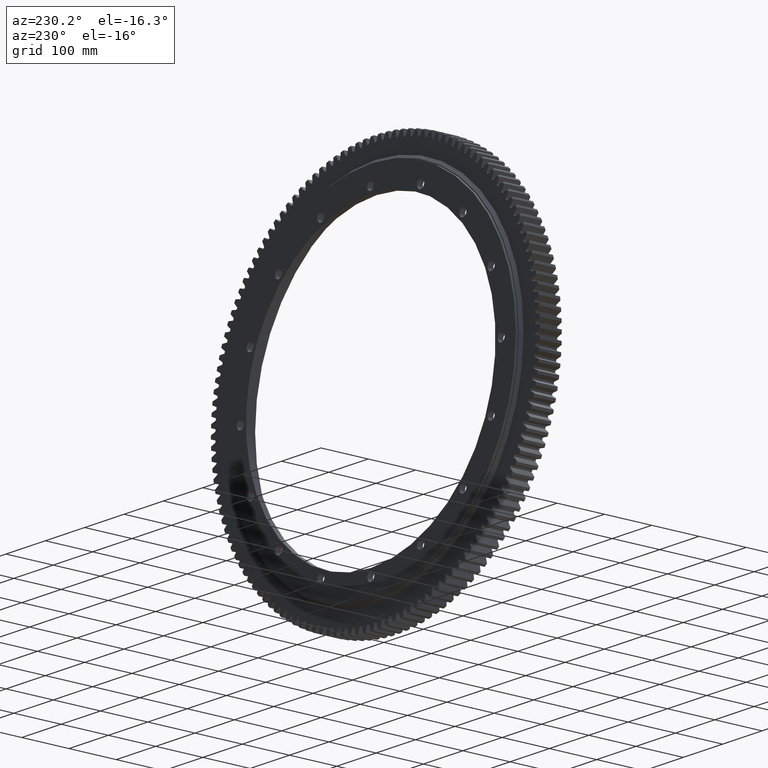
[diagram: clean part render]
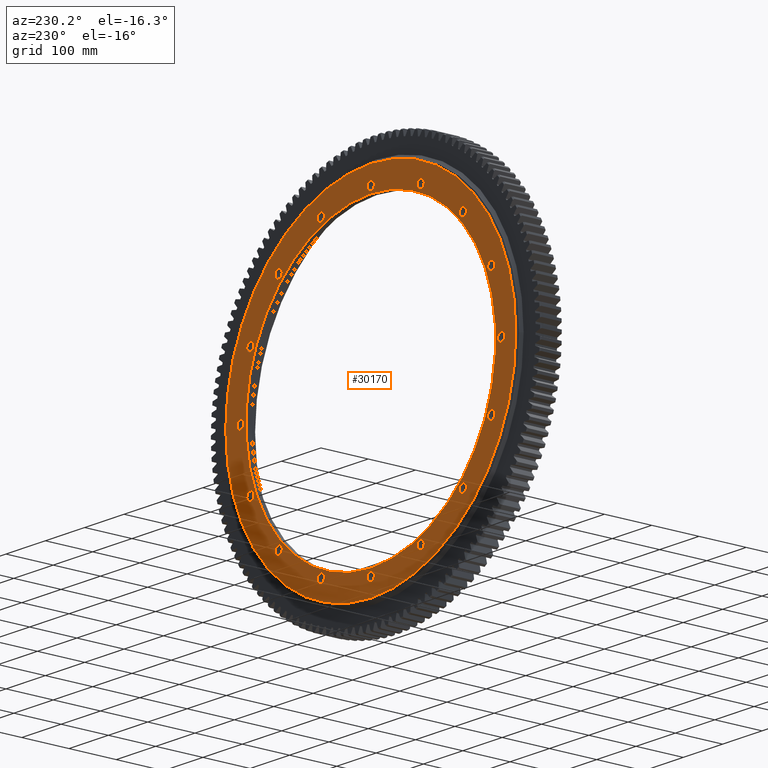
[diagram: same view with one face highlighted and labeled with its STEP entity id]
A machine part, auxiliary view. The second image highlights one B-rep face of the part: STEP entity #30170.
In plain terms, the highlighted planar face has unit normal (0, -1, 0).
Its self-contained STEP definition (entity closure, byte-faithful):
#181 = AXIS2_PLACEMENT_3D ( 'NONE', #20495, #20459, #20453 ) ;
#184 = DIRECTION ( 'NONE',  ( -2.189528850507526700E-047, 1.000000000000000000, -2.727064569436389100E-017 ) ) ;
#435 = DIRECTION ( 'NONE',  ( 6.982966722218730200E-015, 0.0000000000000000000, -1.000000000000000000 ) ) ;
#554 = CARTESIAN_POINT ( 'NONE',  ( 234.0523445727477800, 27.99999999999997900, 243.0523445727466800 ) ) ;
#588 = CARTESIAN_POINT ( 'NONE',  ( 0.0000000000000000000, 27.99999999999998200, 368.2500000000000600 ) ) ;
#659 = FACE_BOUND ( 'NONE', #30126, .T. ) ;
#672 = VERTEX_POINT ( 'NONE', #32182 ) ;
#1073 = CARTESIAN_POINT ( 'NONE',  ( -126.6682161128406000, 27.99999999999998200, 314.8041252612377400 ) ) ;
#1139 = CARTESIAN_POINT ( 'NONE',  ( 4.775061188007405400E-012, 27.99999999999998200, 322.0000000000000000 ) ) ;
#1143 = AXIS2_PLACEMENT_3D ( 'NONE', #35512, #35521, #35638 ) ;
#1312 = CIRCLE ( 'NONE', #5170, 8.999999999999971600 ) ;
#1413 = CARTESIAN_POINT ( 'NONE',  ( -2.462597020833762200E-012, 27.99999999999996400, -331.0000000000000000 ) ) ;
#1541 = VERTEX_POINT ( 'NONE', #19226 ) ;
#1547 = FACE_BOUND ( 'NONE', #2314, .T. ) ;
#1942 = AXIS2_PLACEMENT_3D ( 'NONE', #18687, #20784, #30945 ) ;
#2055 = EDGE_LOOP ( 'NONE', ( #10370, #29135 ) ) ;
#2192 = CARTESIAN_POINT ( 'NONE',  ( 0.0000000000000000000, 27.99999999999997500, -1.609761843022099700E-015 ) ) ;
#2314 = EDGE_LOOP ( 'NONE', ( #12140, #36293 ) ) ;
#2434 = EDGE_CURVE ( 'NONE', #26089, #31465, #9537, .T. ) ;
#2759 = ORIENTED_EDGE ( 'NONE', *, *, #2434, .F. ) ;
#2806 = DIRECTION ( 'NONE',  ( -0.7071067811865429100, 0.0000000000000000000, -0.7071067811865521200 ) ) ;
#3054 = CARTESIAN_POINT ( 'NONE',  ( -331.0000000000000000, 27.99999999999997200, 3.617514435281525600E-012 ) ) ;
#3075 = CIRCLE ( 'NONE', #24991, 8.999999999999992900 ) ;
#3303 = ORIENTED_EDGE ( 'NONE', *, *, #12952, .F. ) ;
#3420 = CARTESIAN_POINT ( 'NONE',  ( 305.8041252612363800, 27.99999999999997500, 117.6682161128436200 ) ) ;
#3463 = AXIS2_PLACEMENT_3D ( 'NONE', #33241, #31576, #31642 ) ;
#3544 = CIRCLE ( 'NONE', #29348, 8.999999999999987600 ) ;
#3575 = CIRCLE ( 'NONE', #36294, 8.999999999999987600 ) ;
#3886 = ORIENTED_EDGE ( 'NONE', *, *, #23187, .F. ) ;
#4110 = CARTESIAN_POINT ( 'NONE',  ( -126.6682161128472600, 27.99999999999996400, -296.8041252612348400 ) ) ;
#4656 = CARTESIAN_POINT ( 'NONE',  ( 234.0523445727477800, 27.99999999999997900, 234.0523445727467000 ) ) ;
#4687 = ORIENTED_EDGE ( 'NONE', *, *, #32518, .F. ) ;
#4711 = VERTEX_POINT ( 'NONE', #11882 ) ;
#4858 = EDGE_LOOP ( 'NONE', ( #8574, #24644 ) ) ;
#5002 = VERTEX_POINT ( 'NONE', #36316 ) ;
#5065 = CARTESIAN_POINT ( 'NONE',  ( -331.0000000000000000, 27.99999999999997200, 9.000000000003609600 ) ) ;
#5170 = AXIS2_PLACEMENT_3D ( 'NONE', #7316, #7155, #7111 ) ;
#5204 = ORIENTED_EDGE ( 'NONE', *, *, #34694, .F. ) ;
#5351 = CARTESIAN_POINT ( 'NONE',  ( 0.0000000000000000000, 27.99999999999998200, 317.0000000000000000 ) ) ;
#5608 = CARTESIAN_POINT ( 'NONE',  ( 126.6682161128427100, 27.99999999999996400, -305.8041252612367800 ) ) ;
#5777 = ORIENTED_EDGE ( 'NONE', *, *, #26716, .F. ) ;
#5779 = ORIENTED_EDGE ( 'NONE', *, *, #28289, .F. ) ;
#5842 = AXIS2_PLACEMENT_3D ( 'NONE', #7286, #27124, #10152 ) ;
#5849 = ORIENTED_EDGE ( 'NONE', *, *, #13092, .F. ) ;
#5910 = VERTEX_POINT ( 'NONE', #5065 ) ;
#6071 = VERTEX_POINT ( 'NONE', #5351 ) ;
#6108 = CARTESIAN_POINT ( 'NONE',  ( 234.0523445727477800, 27.99999999999997900, 234.0523445727467000 ) ) ;
#6141 = AXIS2_PLACEMENT_3D ( 'NONE', #24876, #7836, #27691 ) ;
#6201 = EDGE_CURVE ( 'NONE', #14086, #27010, #28849, .T. ) ;
#6232 = DIRECTION ( 'NONE',  ( 0.0000000000000000000, -1.000000000000000000, 2.727064569436389700E-017 ) ) ;
#6388 = FACE_BOUND ( 'NONE', #7449, .T. ) ;
#6429 = CIRCLE ( 'NONE', #27158, 8.999999999999987600 ) ;
#6897 = EDGE_CURVE ( 'NONE', #4711, #15159, #3544, .T. ) ;
#6942 = VERTEX_POINT ( 'NONE', #20954 ) ;
#6953 = EDGE_CURVE ( 'NONE', #15221, #25660, #24413, .T. ) ;
#7111 = DIRECTION ( 'NONE',  ( -0.3826834323650841800, 0.0000000000000000000, -0.9238795325112889600 ) ) ;
#7155 = DIRECTION ( 'NONE',  ( 1.540743955509788700E-033, 1.000000000000000000, -2.727064569436389700E-017 ) ) ;
#7234 = EDGE_CURVE ( 'NONE', #25660, #15221, #1312, .T. ) ;
#7279 = CARTESIAN_POINT ( 'NONE',  ( 331.0000000000000000, 27.99999999999997200, -1.307679606385998600E-012 ) ) ;
#7286 = CARTESIAN_POINT ( 'NONE',  ( -305.8041252612372900, 27.99999999999996800, -126.6682161128416800 ) ) ;
#7297 = FACE_BOUND ( 'NONE', #34632, .T. ) ;
#7299 = AXIS2_PLACEMENT_3D ( 'NONE', #1413, #184, #435 ) ;
#7316 = CARTESIAN_POINT ( 'NONE',  ( -126.6682161128472600, 27.99999999999996400, -305.8041252612348400 ) ) ;
#7370 = CIRCLE ( 'NONE', #31298, 8.999999999999982200 ) ;
#7449 = EDGE_LOOP ( 'NONE', ( #21433, #31525 ) ) ;
#7757 = DIRECTION ( 'NONE',  ( -0.9238795325112857400, 0.0000000000000000000, -0.3826834323650920600 ) ) ;
#7836 = DIRECTION ( 'NONE',  ( -1.540743955509788700E-033, 1.000000000000000000, -2.727064569436389700E-017 ) ) ;
#7985 = AXIS2_PLACEMENT_3D ( 'NONE', #30307, #30065, #29752 ) ;
#7988 = CIRCLE ( 'NONE', #35050, 8.999999999999987600 ) ;
#8017 = ORIENTED_EDGE ( 'NONE', *, *, #26819, .F. ) ;
#8180 = FACE_BOUND ( 'NONE', #15322, .T. ) ;
#8249 = DIRECTION ( 'NONE',  ( -0.0000000000000000000, 1.000000000000000000, -2.727064569436389700E-017 ) ) ;
#8450 = DIRECTION ( 'NONE',  ( 0.3826834323650946700, 0.0000000000000000000, -0.9238795325112846300 ) ) ;
#8493 = EDGE_CURVE ( 'NONE', #672, #9886, #3575, .T. ) ;
#8541 = VERTEX_POINT ( 'NONE', #8731 ) ;
#8546 = ORIENTED_EDGE ( 'NONE', *, *, #6201, .F. ) ;
#8574 = ORIENTED_EDGE ( 'NONE', *, *, #26772, .F. ) ;
#8685 = EDGE_CURVE ( 'NONE', #14079, #14563, #21801, .T. ) ;
#8720 = EDGE_LOOP ( 'NONE', ( #26483, #19840 ) ) ;
#8731 = CARTESIAN_POINT ( 'NONE',  ( -305.8041252612372900, 27.99999999999996800, -117.6682161128416900 ) ) ;
#8814 = AXIS2_PLACEMENT_3D ( 'NONE', #588, #6232, #26131 ) ;
#8866 = VERTEX_POINT ( 'NONE', #17573 ) ;
#9078 = FACE_BOUND ( 'NONE', #24063, .T. ) ;
#9120 = VERTEX_POINT ( 'NONE', #14602 ) ;
#9254 = CARTESIAN_POINT ( 'NONE',  ( 4.773959005888173100E-012, 27.99999999999998200, 340.0000000000000000 ) ) ;
#9537 = CIRCLE ( 'NONE', #13625, 9.000000000000007100 ) ;
#9886 = VERTEX_POINT ( 'NONE', #554 ) ;
#10151 = DIRECTION ( 'NONE',  ( 1.000000000000000000, 0.0000000000000000000, 1.047445008332811800E-014 ) ) ;
#10152 = DIRECTION ( 'NONE',  ( -0.9238795325112857400, 0.0000000000000000000, -0.3826834323650920600 ) ) ;
#10257 = VERTEX_POINT ( 'NONE', #30202 ) ;
#10327 = ORIENTED_EDGE ( 'NONE', *, *, #26026, .F. ) ;
#10340 = AXIS2_PLACEMENT_3D ( 'NONE', #11478, #31160, #14329 ) ;
#10370 = ORIENTED_EDGE ( 'NONE', *, *, #30312, .T. ) ;
#10717 = CARTESIAN_POINT ( 'NONE',  ( -331.0000000000000000, 27.99999999999997200, 3.617514435281525600E-012 ) ) ;
#10840 = CARTESIAN_POINT ( 'NONE',  ( -2.462597020833762200E-012, 27.99999999999996400, -322.0000000000000000 ) ) ;
#11156 = AXIS2_PLACEMENT_3D ( 'NONE', #10717, #30441, #13571 ) ;
#11478 = CARTESIAN_POINT ( 'NONE',  ( 234.0523445727459100, 27.99999999999996800, -234.0523445727485800 ) ) ;
#11882 = CARTESIAN_POINT ( 'NONE',  ( -234.0523445727494000, 27.99999999999996800, -243.0523445727450800 ) ) ;
#11994 = EDGE_CURVE ( 'NONE', #27010, #14086, #22473, .T. ) ;
#12140 = ORIENTED_EDGE ( 'NONE', *, *, #31771, .F. ) ;
#12157 = CARTESIAN_POINT ( 'NONE',  ( -126.6682161128406000, 27.99999999999998200, 296.8041252612377400 ) ) ;
#12549 = DIRECTION ( 'NONE',  ( 3.081487911019577400E-033, 1.000000000000000000, -2.727064569436389400E-017 ) ) ;
#12596 = CARTESIAN_POINT ( 'NONE',  ( 305.8041252612354100, 27.99999999999996800, -126.6682161128460700 ) ) ;
#12901 = EDGE_CURVE ( 'NONE', #16310, #8866, #32496, .T. ) ;
#12952 = EDGE_CURVE ( 'NONE', #9886, #672, #6429, .T. ) ;
#13092 = EDGE_CURVE ( 'NONE', #22047, #19409, #18060, .T. ) ;
#13399 = DIRECTION ( 'NONE',  ( -0.0000000000000000000, 1.000000000000000000, -2.727064569436389700E-017 ) ) ;
#13506 = DIRECTION ( 'NONE',  ( -0.9238795325112878500, 0.0000000000000000000, 0.3826834323650868400 ) ) ;
#13571 = DIRECTION ( 'NONE',  ( -1.000000000000000000, 0.0000000000000000000, -3.491483361109409300E-015 ) ) ;
#13625 = AXIS2_PLACEMENT_3D ( 'NONE', #15491, #16396, #18140 ) ;
#13828 = AXIS2_PLACEMENT_3D ( 'NONE', #5608, #25476, #8450 ) ;
#13881 = DIRECTION ( 'NONE',  ( -1.000000000000000000, 0.0000000000000000000, -3.491483361109409300E-015 ) ) ;
#13904 = CARTESIAN_POINT ( 'NONE',  ( 234.0523445727459100, 27.99999999999996800, -234.0523445727485800 ) ) ;
#13923 = AXIS2_PLACEMENT_3D ( 'NONE', #3054, #12549, #13881 ) ;
#13976 = VERTEX_POINT ( 'NONE', #29582 ) ;
#13994 = FACE_BOUND ( 'NONE', #18204, .T. ) ;
#14037 = EDGE_CURVE ( 'NONE', #19409, #22047, #28992, .T. ) ;
#14059 = DIRECTION ( 'NONE',  ( -3.081487911019577400E-033, 1.000000000000000000, -2.727064569436389400E-017 ) ) ;
#14073 = DIRECTION ( 'NONE',  ( 0.0000000000000000000, 1.000000000000000000, -2.727064569436390300E-017 ) ) ;
#14079 = VERTEX_POINT ( 'NONE', #30193 ) ;
#14086 = VERTEX_POINT ( 'NONE', #1139 ) ;
#14141 = CARTESIAN_POINT ( 'NONE',  ( -234.0523445727442600, 27.99999999999997900, 243.0523445727501700 ) ) ;
#14154 = CARTESIAN_POINT ( 'NONE',  ( 305.8041252612363800, 27.99999999999997500, 126.6682161128436200 ) ) ;
#14191 = DIRECTION ( 'NONE',  ( 0.9238795325112826300, 0.0000000000000000000, 0.3826834323650996100 ) ) ;
#14217 = EDGE_LOOP ( 'NONE', ( #17280, #27388 ) ) ;
#14329 = DIRECTION ( 'NONE',  ( 0.7071067811865536800, 0.0000000000000000000, -0.7071067811865414700 ) ) ;
#14563 = VERTEX_POINT ( 'NONE', #22654 ) ;
#14602 = CARTESIAN_POINT ( 'NONE',  ( -305.8041252612343900, 27.99999999999997500, 135.6682161128483100 ) ) ;
#14831 = CIRCLE ( 'NONE', #21544, 9.000000000000010700 ) ;
#14867 = FACE_BOUND ( 'NONE', #17741, .T. ) ;
#14934 = AXIS2_PLACEMENT_3D ( 'NONE', #23904, #24130, #26623 ) ;
#15053 = DIRECTION ( 'NONE',  ( 4.622231866529366000E-033, 1.000000000000000000, -2.727064569436390300E-017 ) ) ;
#15086 = DIRECTION ( 'NONE',  ( -0.3826834323650894500, 0.0000000000000000000, 0.9238795325112868500 ) ) ;
#15159 = VERTEX_POINT ( 'NONE', #18018 ) ;
#15221 = VERTEX_POINT ( 'NONE', #4110 ) ;
#15322 = EDGE_LOOP ( 'NONE', ( #33405, #5779 ) ) ;
#15473 = DIRECTION ( 'NONE',  ( 0.7071067811865398000, 0.0000000000000000000, 0.7071067811865552300 ) ) ;
#15491 = CARTESIAN_POINT ( 'NONE',  ( -2.462597020833762200E-012, 27.99999999999996400, -331.0000000000000000 ) ) ;
#15498 = DIRECTION ( 'NONE',  ( -1.540743955509788700E-033, 1.000000000000000000, -2.727064569436389700E-017 ) ) ;
#15742 = CIRCLE ( 'NONE', #13923, 9.000000000000007100 ) ;
#15775 = FACE_BOUND ( 'NONE', #23117, .T. ) ;
#16266 = DIRECTION ( 'NONE',  ( -0.7071067811865491300, 0.0000000000000000000, 0.7071067811865460200 ) ) ;
#16310 = VERTEX_POINT ( 'NONE', #25014 ) ;
#16396 = DIRECTION ( 'NONE',  ( -2.189528850507526700E-047, 1.000000000000000000, -2.727064569436389100E-017 ) ) ;
#16494 = AXIS2_PLACEMENT_3D ( 'NONE', #16554, #36082, #19430 ) ;
#16540 = CARTESIAN_POINT ( 'NONE',  ( -126.6682161128406000, 27.99999999999998200, 305.8041252612377400 ) ) ;
#16554 = CARTESIAN_POINT ( 'NONE',  ( 126.6682161128427100, 27.99999999999996400, -305.8041252612367800 ) ) ;
#16584 = ORIENTED_EDGE ( 'NONE', *, *, #33888, .F. ) ;
#16591 = CIRCLE ( 'NONE', #31340, 9.000000000000003600 ) ;
#16634 = EDGE_CURVE ( 'NONE', #36360, #13976, #31045, .T. ) ;
#17164 = DIRECTION ( 'NONE',  ( 0.9238795325112910700, 0.0000000000000000000, -0.3826834323650794000 ) ) ;
#17196 = DIRECTION ( 'NONE',  ( -3.081487911019577400E-033, 1.000000000000000000, -2.727064569436389100E-017 ) ) ;
#17280 = ORIENTED_EDGE ( 'NONE', *, *, #6953, .F. ) ;
#17298 = CIRCLE ( 'NONE', #1942, 9.000000000000007100 ) ;
#17573 = CARTESIAN_POINT ( 'NONE',  ( 234.0523445727459100, 27.99999999999996800, -243.0523445727485800 ) ) ;
#17588 = FACE_BOUND ( 'NONE', #8720, .T. ) ;
#17602 = CARTESIAN_POINT ( 'NONE',  ( 0.0000000000000000000, 27.99999999999997900, 368.2500000000000600 ) ) ;
#17727 = AXIS2_PLACEMENT_3D ( 'NONE', #13904, #14073, #18093 ) ;
#17741 = EDGE_LOOP ( 'NONE', ( #5204, #31841 ) ) ;
#17780 = CIRCLE ( 'NONE', #1143, 8.999999999999982200 ) ;
#17948 = AXIS2_PLACEMENT_3D ( 'NONE', #19697, #19728, #20921 ) ;
#18018 = CARTESIAN_POINT ( 'NONE',  ( -234.0523445727494000, 27.99999999999996800, -225.0523445727451100 ) ) ;
#18060 = CIRCLE ( 'NONE', #22693, 8.999999999999971600 ) ;
#18066 = EDGE_LOOP ( 'NONE', ( #23247, #19878 ) ) ;
#18093 = DIRECTION ( 'NONE',  ( 0.7071067811865536800, 0.0000000000000000000, -0.7071067811865414700 ) ) ;
#18140 = DIRECTION ( 'NONE',  ( 6.982966722218730200E-015, 0.0000000000000000000, -1.000000000000000000 ) ) ;
#18204 = EDGE_LOOP ( 'NONE', ( #28240, #8546 ) ) ;
#18504 = ORIENTED_EDGE ( 'NONE', *, *, #12901, .F. ) ;
#18608 = EDGE_LOOP ( 'NONE', ( #3303, #34232 ) ) ;
#18687 = CARTESIAN_POINT ( 'NONE',  ( 331.0000000000000000, 27.99999999999997200, -1.307679606385998600E-012 ) ) ;
#19226 = CARTESIAN_POINT ( 'NONE',  ( 126.6682161128427100, 27.99999999999996400, -296.8041252612367800 ) ) ;
#19268 = VERTEX_POINT ( 'NONE', #22871 ) ;
#19409 = VERTEX_POINT ( 'NONE', #27992 ) ;
#19430 = DIRECTION ( 'NONE',  ( 0.3826834323650946700, 0.0000000000000000000, -0.9238795325112846300 ) ) ;
#19652 = EDGE_CURVE ( 'NONE', #36495, #30245, #3075, .T. ) ;
#19697 = CARTESIAN_POINT ( 'NONE',  ( 4.773959005888173100E-012, 27.99999999999998200, 331.0000000000000000 ) ) ;
#19728 = DIRECTION ( 'NONE',  ( 0.0000000000000000000, 1.000000000000000000, -2.727064569436389700E-017 ) ) ;
#19825 = CIRCLE ( 'NONE', #29952, 317.0000000000000000 ) ;
#19840 = ORIENTED_EDGE ( 'NONE', *, *, #28130, .F. ) ;
#19862 = DIRECTION ( 'NONE',  ( 0.0000000000000000000, 1.000000000000000000, -2.727064569436389400E-017 ) ) ;
#19878 = ORIENTED_EDGE ( 'NONE', *, *, #16634, .F. ) ;
#19955 = CIRCLE ( 'NONE', #14934, 8.999999999999992900 ) ;
#20122 = EDGE_CURVE ( 'NONE', #6942, #31915, #32185, .T. ) ;
#20134 = EDGE_CURVE ( 'NONE', #26921, #29155, #17298, .T. ) ;
#20307 = CIRCLE ( 'NONE', #6141, 9.000000000000000000 ) ;
#20399 = VERTEX_POINT ( 'NONE', #22121 ) ;
#20453 = DIRECTION ( 'NONE',  ( -0.3826834323650841800, 0.0000000000000000000, -0.9238795325112889600 ) ) ;
#20459 = DIRECTION ( 'NONE',  ( 1.540743955509788700E-033, 1.000000000000000000, -2.727064569436389700E-017 ) ) ;
#20495 = CARTESIAN_POINT ( 'NONE',  ( -126.6682161128472600, 27.99999999999996400, -305.8041252612348400 ) ) ;
#20784 = DIRECTION ( 'NONE',  ( -3.081487911019577400E-033, 1.000000000000000000, -2.727064569436389700E-017 ) ) ;
#20921 = DIRECTION ( 'NONE',  ( 0.0000000000000000000, 0.0000000000000000000, 1.000000000000000000 ) ) ;
#20954 = CARTESIAN_POINT ( 'NONE',  ( -234.0523445727442600, 27.99999999999997900, 225.0523445727502300 ) ) ;
#21433 = ORIENTED_EDGE ( 'NONE', *, *, #27690, .F. ) ;
#21544 = AXIS2_PLACEMENT_3D ( 'NONE', #23107, #23961, #26403 ) ;
#21561 = FACE_BOUND ( 'NONE', #4858, .T. ) ;
#21616 = EDGE_CURVE ( 'NONE', #26162, #9120, #7370, .T. ) ;
#21708 = DIRECTION ( 'NONE',  ( -0.7071067811865429100, 0.0000000000000000000, -0.7071067811865521200 ) ) ;
#21748 = DIRECTION ( 'NONE',  ( 0.0000000000000000000, 1.000000000000000000, -2.727064569436389400E-017 ) ) ;
#21789 = CARTESIAN_POINT ( 'NONE',  ( -234.0523445727494000, 27.99999999999996800, -234.0523445727450800 ) ) ;
#21801 = CIRCLE ( 'NONE', #26369, 9.000000000000000000 ) ;
#22047 = VERTEX_POINT ( 'NONE', #3420 ) ;
#22076 = CARTESIAN_POINT ( 'NONE',  ( -305.8041252612343900, 27.99999999999997500, 126.6682161128483400 ) ) ;
#22121 = CARTESIAN_POINT ( 'NONE',  ( 3.882130353297109900E-014, 27.99999999999996800, -317.0000000000000000 ) ) ;
#22127 = EDGE_CURVE ( 'NONE', #20399, #6071, #19825, .T. ) ;
#22394 = CARTESIAN_POINT ( 'NONE',  ( 126.6682161128450200, 27.99999999999998200, 305.8041252612358700 ) ) ;
#22441 = FACE_BOUND ( 'NONE', #29387, .T. ) ;
#22461 = EDGE_LOOP ( 'NONE', ( #10327, #32335 ) ) ;
#22473 = CIRCLE ( 'NONE', #17948, 9.000000000000007100 ) ;
#22654 = CARTESIAN_POINT ( 'NONE',  ( 126.6682161128450200, 27.99999999999998200, 296.8041252612358700 ) ) ;
#22693 = AXIS2_PLACEMENT_3D ( 'NONE', #14154, #14059, #14191 ) ;
#22871 = CARTESIAN_POINT ( 'NONE',  ( -305.8041252612372900, 27.99999999999996800, -135.6682161128416600 ) ) ;
#23005 = EDGE_LOOP ( 'NONE', ( #8017, #34591 ) ) ;
#23107 = CARTESIAN_POINT ( 'NONE',  ( 305.8041252612354100, 27.99999999999996800, -126.6682161128460700 ) ) ;
#23117 = EDGE_LOOP ( 'NONE', ( #18504, #4687 ) ) ;
#23187 = EDGE_CURVE ( 'NONE', #5910, #10257, #15742, .T. ) ;
#23247 = ORIENTED_EDGE ( 'NONE', *, *, #23248, .F. ) ;
#23248 = EDGE_CURVE ( 'NONE', #13976, #36360, #14831, .T. ) ;
#23302 = FACE_BOUND ( 'NONE', #18066, .T. ) ;
#23826 = EDGE_CURVE ( 'NONE', #19268, #8541, #16591, .T. ) ;
#23865 = AXIS2_PLACEMENT_3D ( 'NONE', #7279, #27120, #10151 ) ;
#23904 = CARTESIAN_POINT ( 'NONE',  ( -126.6682161128406000, 27.99999999999998200, 305.8041252612377400 ) ) ;
#23917 = DIRECTION ( 'NONE',  ( -3.081487911019577400E-033, 1.000000000000000000, -2.727064569436389400E-017 ) ) ;
#23961 = DIRECTION ( 'NONE',  ( -3.081487911019577400E-033, 1.000000000000000000, -2.727064569436389100E-017 ) ) ;
#24063 = EDGE_LOOP ( 'NONE', ( #30605, #5849 ) ) ;
#24130 = DIRECTION ( 'NONE',  ( 4.622231866529366000E-033, 1.000000000000000000, -2.727064569436390300E-017 ) ) ;
#24157 = CIRCLE ( 'NONE', #23865, 9.000000000000007100 ) ;
#24195 = EDGE_CURVE ( 'NONE', #5002, #26331, #25852, .T. ) ;
#24267 = CIRCLE ( 'NONE', #13828, 9.000000000000014200 ) ;
#24413 = CIRCLE ( 'NONE', #181, 8.999999999999971600 ) ;
#24446 = AXIS2_PLACEMENT_3D ( 'NONE', #27552, #28517, #28258 ) ;
#24491 = ORIENTED_EDGE ( 'NONE', *, *, #6897, .F. ) ;
#24644 = ORIENTED_EDGE ( 'NONE', *, *, #19652, .F. ) ;
#24876 = CARTESIAN_POINT ( 'NONE',  ( 126.6682161128450200, 27.99999999999998200, 305.8041252612358700 ) ) ;
#24991 = AXIS2_PLACEMENT_3D ( 'NONE', #16540, #15053, #15086 ) ;
#25014 = CARTESIAN_POINT ( 'NONE',  ( 234.0523445727459100, 27.99999999999996800, -225.0523445727486100 ) ) ;
#25095 = CARTESIAN_POINT ( 'NONE',  ( -305.8041252612343900, 27.99999999999997500, 117.6682161128483400 ) ) ;
#25275 = CARTESIAN_POINT ( 'NONE',  ( 0.0000000000000000000, 27.99999999999997500, -1.609761843022099700E-015 ) ) ;
#25293 = CARTESIAN_POINT ( 'NONE',  ( -305.8041252612372900, 27.99999999999996800, -126.6682161128416800 ) ) ;
#25476 = DIRECTION ( 'NONE',  ( -1.540743955509788700E-033, 1.000000000000000000, -2.727064569436389400E-017 ) ) ;
#25660 = VERTEX_POINT ( 'NONE', #34620 ) ;
#25852 = CIRCLE ( 'NONE', #3463, 368.2500000000000600 ) ;
#26016 = PLANE ( 'NONE',  #8814 ) ;
#26026 = EDGE_CURVE ( 'NONE', #9120, #26162, #17780, .T. ) ;
#26089 = VERTEX_POINT ( 'NONE', #30854 ) ;
#26131 = DIRECTION ( 'NONE',  ( 0.0000000000000000000, -2.727064569436389700E-017, -1.000000000000000000 ) ) ;
#26162 = VERTEX_POINT ( 'NONE', #25095 ) ;
#26261 = AXIS2_PLACEMENT_3D ( 'NONE', #33089, #23917, #36443 ) ;
#26305 = CIRCLE ( 'NONE', #10340, 9.000000000000007100 ) ;
#26331 = VERTEX_POINT ( 'NONE', #17602 ) ;
#26369 = AXIS2_PLACEMENT_3D ( 'NONE', #22394, #15498, #31022 ) ;
#26381 = CARTESIAN_POINT ( 'NONE',  ( 331.0000000000000000, 27.99999999999997200, -9.000000000001300300 ) ) ;
#26403 = DIRECTION ( 'NONE',  ( 0.9238795325112910700, 0.0000000000000000000, -0.3826834323650794000 ) ) ;
#26483 = ORIENTED_EDGE ( 'NONE', *, *, #8685, .F. ) ;
#26555 = CIRCLE ( 'NONE', #24446, 8.999999999999987600 ) ;
#26622 = AXIS2_PLACEMENT_3D ( 'NONE', #25275, #8249, #28063 ) ;
#26623 = DIRECTION ( 'NONE',  ( -0.3826834323650894500, 0.0000000000000000000, 0.9238795325112868500 ) ) ;
#26716 = EDGE_CURVE ( 'NONE', #31465, #26089, #29171, .T. ) ;
#26772 = EDGE_CURVE ( 'NONE', #30245, #36495, #19955, .T. ) ;
#26819 = EDGE_CURVE ( 'NONE', #31915, #6942, #26555, .T. ) ;
#26921 = VERTEX_POINT ( 'NONE', #26381 ) ;
#27010 = VERTEX_POINT ( 'NONE', #9254 ) ;
#27031 = AXIS2_PLACEMENT_3D ( 'NONE', #12596, #17196, #17164 ) ;
#27109 = DIRECTION ( 'NONE',  ( 3.081487911019577400E-033, 1.000000000000000000, -2.727064569436389400E-017 ) ) ;
#27120 = DIRECTION ( 'NONE',  ( -3.081487911019577400E-033, 1.000000000000000000, -2.727064569436389700E-017 ) ) ;
#27124 = DIRECTION ( 'NONE',  ( 9.244463733058732100E-033, 1.000000000000000000, -2.727064569436389100E-017 ) ) ;
#27158 = AXIS2_PLACEMENT_3D ( 'NONE', #4656, #28052, #31577 ) ;
#27251 = CIRCLE ( 'NONE', #16494, 9.000000000000014200 ) ;
#27388 = ORIENTED_EDGE ( 'NONE', *, *, #7234, .F. ) ;
#27552 = CARTESIAN_POINT ( 'NONE',  ( -234.0523445727442600, 27.99999999999997900, 234.0523445727502000 ) ) ;
#27690 = EDGE_CURVE ( 'NONE', #6071, #20399, #32550, .T. ) ;
#27691 = DIRECTION ( 'NONE',  ( 0.3826834323650767900, 0.0000000000000000000, 0.9238795325112921800 ) ) ;
#27923 = CIRCLE ( 'NONE', #5842, 9.000000000000003600 ) ;
#27992 = CARTESIAN_POINT ( 'NONE',  ( 305.8041252612363800, 27.99999999999997500, 135.6682161128436000 ) ) ;
#28038 = ORIENTED_EDGE ( 'NONE', *, *, #36180, .F. ) ;
#28052 = DIRECTION ( 'NONE',  ( -3.081487911019577400E-033, 1.000000000000000000, -2.727064569436389100E-017 ) ) ;
#28063 = DIRECTION ( 'NONE',  ( 0.0000000000000000000, 2.188925521737296000E-017, 1.000000000000000000 ) ) ;
#28130 = EDGE_CURVE ( 'NONE', #14563, #14079, #20307, .T. ) ;
#28240 = ORIENTED_EDGE ( 'NONE', *, *, #11994, .F. ) ;
#28258 = DIRECTION ( 'NONE',  ( -0.7071067811865491300, 0.0000000000000000000, 0.7071067811865460200 ) ) ;
#28289 = EDGE_CURVE ( 'NONE', #36505, #1541, #24267, .T. ) ;
#28334 = DIRECTION ( 'NONE',  ( 9.244463733058732100E-033, 1.000000000000000000, -2.727064569436389100E-017 ) ) ;
#28508 = CARTESIAN_POINT ( 'NONE',  ( 305.8041252612354100, 27.99999999999996800, -135.6682161128460400 ) ) ;
#28517 = DIRECTION ( 'NONE',  ( 3.081487911019577400E-033, 1.000000000000000000, -2.727064569436389400E-017 ) ) ;
#28709 = CIRCLE ( 'NONE', #11156, 9.000000000000007100 ) ;
#28849 = CIRCLE ( 'NONE', #7985, 9.000000000000007100 ) ;
#28992 = CIRCLE ( 'NONE', #26261, 8.999999999999971600 ) ;
#29014 = FACE_BOUND ( 'NONE', #23005, .T. ) ;
#29110 = CARTESIAN_POINT ( 'NONE',  ( 126.6682161128427100, 27.99999999999996400, -314.8041252612367800 ) ) ;
#29135 = ORIENTED_EDGE ( 'NONE', *, *, #24195, .T. ) ;
#29155 = VERTEX_POINT ( 'NONE', #32253 ) ;
#29171 = CIRCLE ( 'NONE', #7299, 9.000000000000007100 ) ;
#29348 = AXIS2_PLACEMENT_3D ( 'NONE', #21789, #21748, #21708 ) ;
#29387 = EDGE_LOOP ( 'NONE', ( #16584, #24491 ) ) ;
#29582 = CARTESIAN_POINT ( 'NONE',  ( 305.8041252612354100, 27.99999999999996800, -117.6682161128460700 ) ) ;
#29752 = DIRECTION ( 'NONE',  ( 0.0000000000000000000, 0.0000000000000000000, 1.000000000000000000 ) ) ;
#29874 = DIRECTION ( 'NONE',  ( 0.0000000000000000000, 2.188925521737296000E-017, 1.000000000000000000 ) ) ;
#29883 = FACE_BOUND ( 'NONE', #14217, .T. ) ;
#29952 = AXIS2_PLACEMENT_3D ( 'NONE', #2192, #30213, #29874 ) ;
#30065 = DIRECTION ( 'NONE',  ( 0.0000000000000000000, 1.000000000000000000, -2.727064569436389700E-017 ) ) ;
#30126 = EDGE_LOOP ( 'NONE', ( #5777, #2759 ) ) ;
#30170 = ADVANCED_FACE ( 'NONE', ( #17588, #30723, #9078, #1547, #23302, #15775, #8180, #659, #29883, #22441, #14867, #7297, #36308, #29014, #21561, #13994, #6388, #35438 ), #26016, .F. ) ;
#30193 = CARTESIAN_POINT ( 'NONE',  ( 126.6682161128450200, 27.99999999999998200, 314.8041252612358700 ) ) ;
#30202 = CARTESIAN_POINT ( 'NONE',  ( -331.0000000000000000, 27.99999999999997200, -8.999999999996376200 ) ) ;
#30213 = DIRECTION ( 'NONE',  ( -0.0000000000000000000, 1.000000000000000000, -2.727064569436389700E-017 ) ) ;
#30245 = VERTEX_POINT ( 'NONE', #1073 ) ;
#30279 = CARTESIAN_POINT ( 'NONE',  ( 0.0000000000000000000, 27.99999999999996800, -1.609761843022099700E-015 ) ) ;
#30307 = CARTESIAN_POINT ( 'NONE',  ( 4.773959005888173100E-012, 27.99999999999998200, 331.0000000000000000 ) ) ;
#30312 = EDGE_CURVE ( 'NONE', #26331, #5002, #31120, .T. ) ;
#30441 = DIRECTION ( 'NONE',  ( 3.081487911019577400E-033, 1.000000000000000000, -2.727064569436389400E-017 ) ) ;
#30605 = ORIENTED_EDGE ( 'NONE', *, *, #14037, .F. ) ;
#30723 = FACE_BOUND ( 'NONE', #18608, .T. ) ;
#30854 = CARTESIAN_POINT ( 'NONE',  ( -2.461494838714529600E-012, 27.99999999999996400, -340.0000000000000000 ) ) ;
#30945 = DIRECTION ( 'NONE',  ( 1.000000000000000000, 0.0000000000000000000, 1.047445008332811800E-014 ) ) ;
#30986 = DIRECTION ( 'NONE',  ( -3.081487911019577400E-033, 1.000000000000000000, -2.727064569436389100E-017 ) ) ;
#31022 = DIRECTION ( 'NONE',  ( 0.3826834323650767900, 0.0000000000000000000, 0.9238795325112921800 ) ) ;
#31045 = CIRCLE ( 'NONE', #27031, 9.000000000000010700 ) ;
#31120 = CIRCLE ( 'NONE', #31515, 368.2500000000000600 ) ;
#31160 = DIRECTION ( 'NONE',  ( 0.0000000000000000000, 1.000000000000000000, -2.727064569436390300E-017 ) ) ;
#31298 = AXIS2_PLACEMENT_3D ( 'NONE', #22076, #35900, #13506 ) ;
#31340 = AXIS2_PLACEMENT_3D ( 'NONE', #25293, #28334, #7757 ) ;
#31464 = EDGE_CURVE ( 'NONE', #1541, #36505, #27251, .T. ) ;
#31465 = VERTEX_POINT ( 'NONE', #10840 ) ;
#31515 = AXIS2_PLACEMENT_3D ( 'NONE', #30279, #13399, #33039 ) ;
#31525 = ORIENTED_EDGE ( 'NONE', *, *, #22127, .F. ) ;
#31576 = DIRECTION ( 'NONE',  ( -0.0000000000000000000, 1.000000000000000000, -2.727064569436389700E-017 ) ) ;
#31577 = DIRECTION ( 'NONE',  ( 0.7071067811865398000, 0.0000000000000000000, 0.7071067811865552300 ) ) ;
#31642 = DIRECTION ( 'NONE',  ( 0.0000000000000000000, 2.826433362080336700E-017, 1.000000000000000000 ) ) ;
#31771 = EDGE_CURVE ( 'NONE', #29155, #26921, #24157, .T. ) ;
#31841 = ORIENTED_EDGE ( 'NONE', *, *, #23826, .F. ) ;
#31915 = VERTEX_POINT ( 'NONE', #14141 ) ;
#32182 = CARTESIAN_POINT ( 'NONE',  ( 234.0523445727477800, 27.99999999999997900, 225.0523445727467300 ) ) ;
#32185 = CIRCLE ( 'NONE', #34692, 8.999999999999987600 ) ;
#32253 = CARTESIAN_POINT ( 'NONE',  ( 331.0000000000000000, 27.99999999999997200, 8.999999999998683700 ) ) ;
#32335 = ORIENTED_EDGE ( 'NONE', *, *, #21616, .F. ) ;
#32496 = CIRCLE ( 'NONE', #17727, 9.000000000000007100 ) ;
#32518 = EDGE_CURVE ( 'NONE', #8866, #16310, #26305, .T. ) ;
#32550 = CIRCLE ( 'NONE', #26622, 317.0000000000000000 ) ;
#33039 = DIRECTION ( 'NONE',  ( 0.0000000000000000000, 2.826433362080336700E-017, 1.000000000000000000 ) ) ;
#33089 = CARTESIAN_POINT ( 'NONE',  ( 305.8041252612363800, 27.99999999999997500, 126.6682161128436200 ) ) ;
#33241 = CARTESIAN_POINT ( 'NONE',  ( 0.0000000000000000000, 27.99999999999996800, -1.609761843022099700E-015 ) ) ;
#33405 = ORIENTED_EDGE ( 'NONE', *, *, #31464, .F. ) ;
#33888 = EDGE_CURVE ( 'NONE', #15159, #4711, #7988, .T. ) ;
#34232 = ORIENTED_EDGE ( 'NONE', *, *, #8493, .F. ) ;
#34591 = ORIENTED_EDGE ( 'NONE', *, *, #20122, .F. ) ;
#34620 = CARTESIAN_POINT ( 'NONE',  ( -126.6682161128472600, 27.99999999999996400, -314.8041252612348400 ) ) ;
#34632 = EDGE_LOOP ( 'NONE', ( #3886, #28038 ) ) ;
#34692 = AXIS2_PLACEMENT_3D ( 'NONE', #34875, #27109, #16266 ) ;
#34694 = EDGE_CURVE ( 'NONE', #8541, #19268, #27923, .T. ) ;
#34875 = CARTESIAN_POINT ( 'NONE',  ( -234.0523445727442600, 27.99999999999997900, 234.0523445727502000 ) ) ;
#35050 = AXIS2_PLACEMENT_3D ( 'NONE', #36501, #19862, #2806 ) ;
#35438 = FACE_OUTER_BOUND ( 'NONE', #2055, .T. ) ;
#35512 = CARTESIAN_POINT ( 'NONE',  ( -305.8041252612343900, 27.99999999999997500, 126.6682161128483400 ) ) ;
#35521 = DIRECTION ( 'NONE',  ( 3.081487911019577400E-033, 1.000000000000000000, -2.727064569436389100E-017 ) ) ;
#35638 = DIRECTION ( 'NONE',  ( -0.9238795325112878500, 0.0000000000000000000, 0.3826834323650868400 ) ) ;
#35900 = DIRECTION ( 'NONE',  ( 3.081487911019577400E-033, 1.000000000000000000, -2.727064569436389100E-017 ) ) ;
#36082 = DIRECTION ( 'NONE',  ( -1.540743955509788700E-033, 1.000000000000000000, -2.727064569436389400E-017 ) ) ;
#36180 = EDGE_CURVE ( 'NONE', #10257, #5910, #28709, .T. ) ;
#36293 = ORIENTED_EDGE ( 'NONE', *, *, #20134, .F. ) ;
#36294 = AXIS2_PLACEMENT_3D ( 'NONE', #6108, #30986, #15473 ) ;
#36308 = FACE_BOUND ( 'NONE', #22461, .T. ) ;
#36316 = CARTESIAN_POINT ( 'NONE',  ( 4.509761837860128800E-014, 27.99999999999995700, -368.2500000000000600 ) ) ;
#36360 = VERTEX_POINT ( 'NONE', #28508 ) ;
#36443 = DIRECTION ( 'NONE',  ( 0.9238795325112826300, 0.0000000000000000000, 0.3826834323650996100 ) ) ;
#36495 = VERTEX_POINT ( 'NONE', #12157 ) ;
#36501 = CARTESIAN_POINT ( 'NONE',  ( -234.0523445727494000, 27.99999999999996800, -234.0523445727450800 ) ) ;
#36505 = VERTEX_POINT ( 'NONE', #29110 ) ;